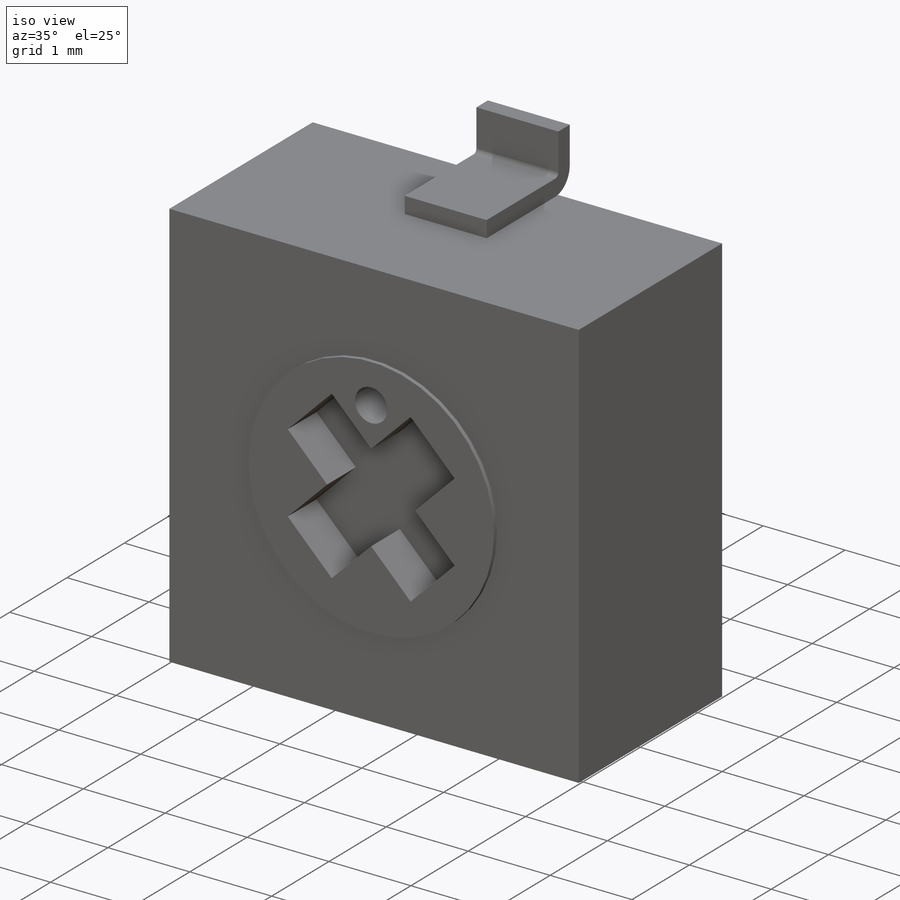
[diagram: iso view]
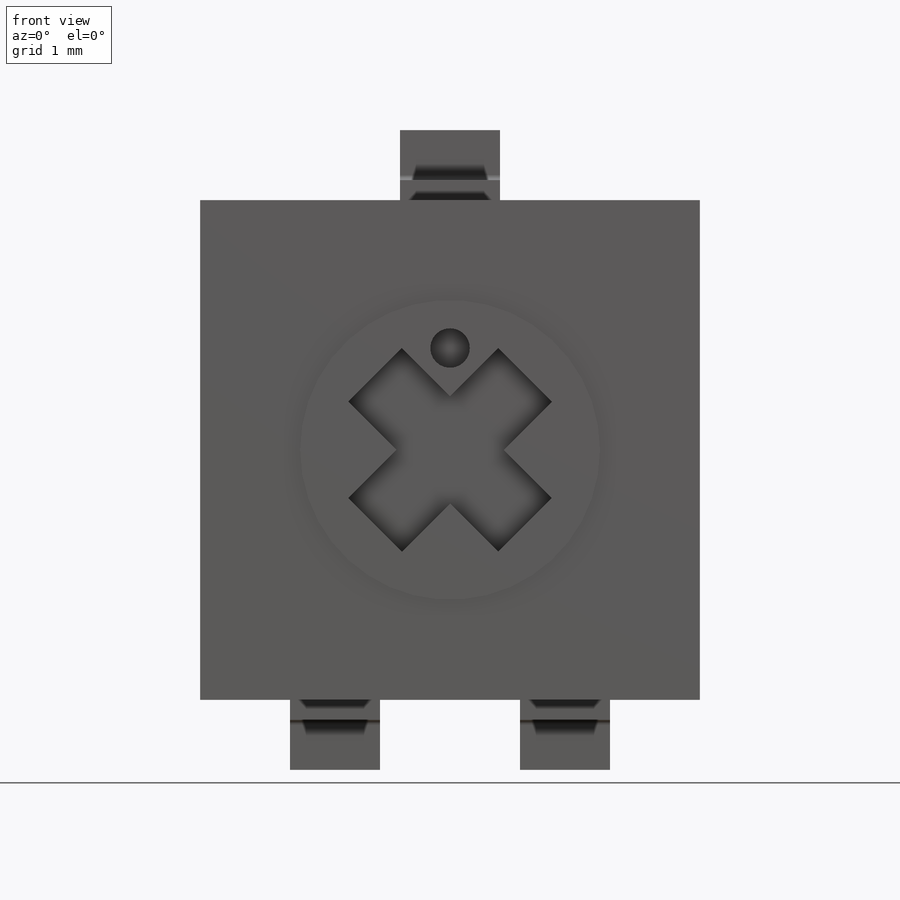
[diagram: front view]
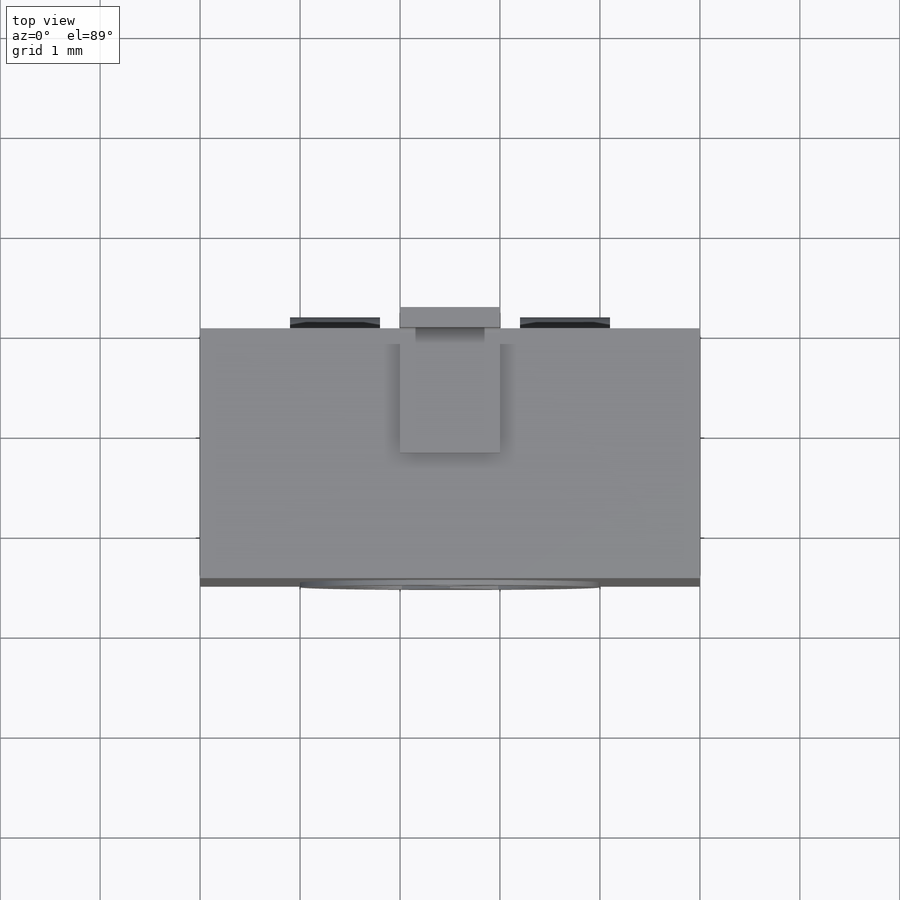
[diagram: top view]
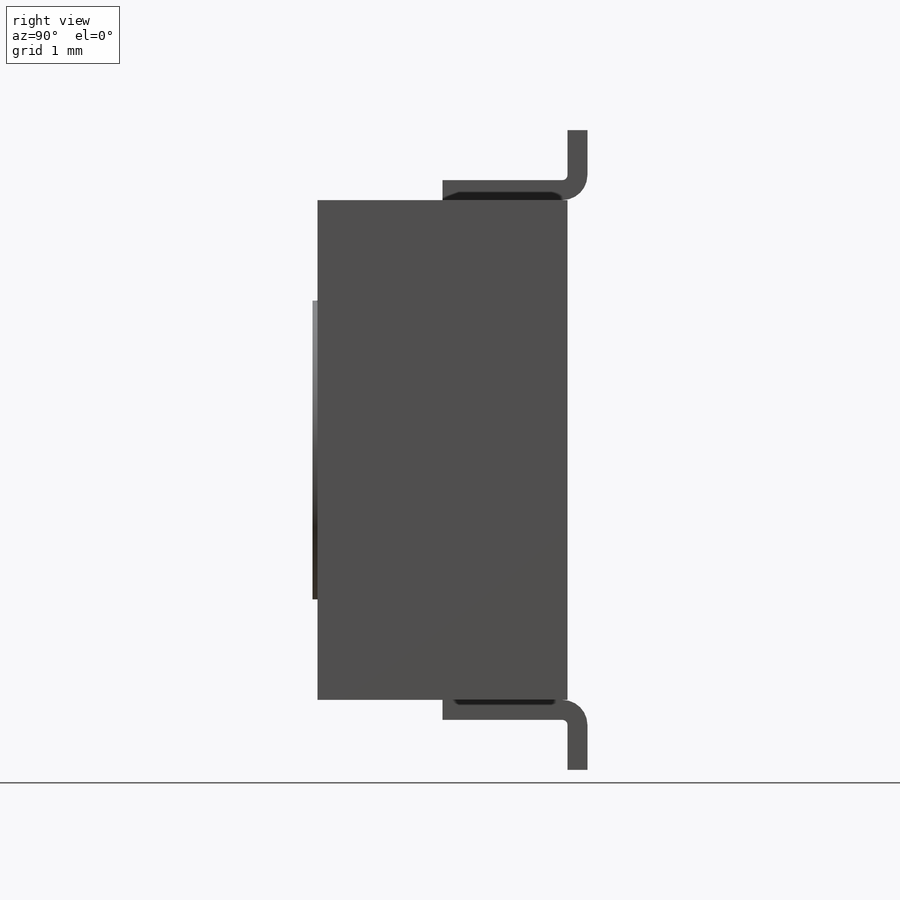
[diagram: right view]
SOLIDWORKS PART (.sldprt)
format: sldprt  version: not decoded by parser v0  size: 227,328 bytes
history: native  units: mm
features: sketch x5, extrude x3, plane x2, material x1, pattern_linear x1, cut_extrude x1 (+13 scaffold rows collapsed)
feature tree (26):
  scaffold x13  (default folders/planes/origin — collapsed)
  material  "Material <not specified>"
  sketch  "Sketch1"  dims[D1=5.0mm D2=5.0mm]
  extrude  "Boss-Extrude1"  Depth=2.5mm
  plane  "Plane1"  Offset=2.5mm
  plane  "Plane2"  Offset=1.35mm
  sketch  "Sketch2"  dims[c1.D1=2.7mm c1.D2=0.7mm c2.D1=1.0mm c2.D5=0.2mm c2.D6=1.0mm c2.D7=0.05mm]
  sketch  "Sketch3"  dims[D1=2.7mm D2=0.7mm]
  extrude  "Extrude-Thin2"  Depth=0.9mm
  pattern_linear  "LPattern1"  Count1=2 Count2=1 Spacing1=2.3mm Spacing2=10mm
  sketch  "Sketch4"  dims[D1=3.0mm]
  extrude  "Boss-Extrude2"  Depth=0.05mm
  sketch  "Sketch5"  dims[D2=2.0 D1=2.0 D4=2.0 D3=2.0]
  cut_extrude  "Cut-Extrude2"  Depth=0.5mm
decode coverage: 10 of 10 modeling features carry decoded parameters
note: suppression state not decoded; provenance and decode notes live in map.json
